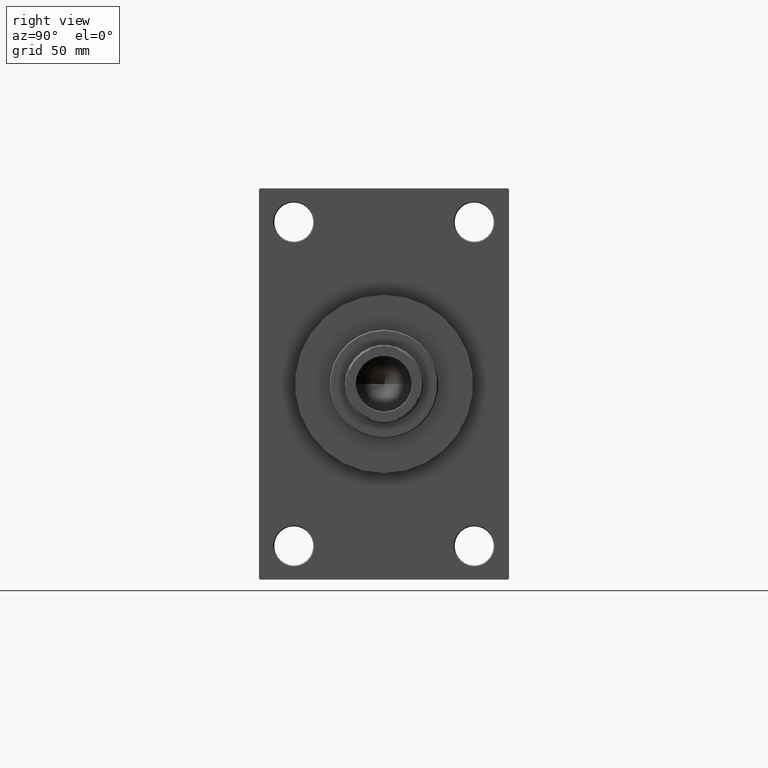
[diagram: clean part render]
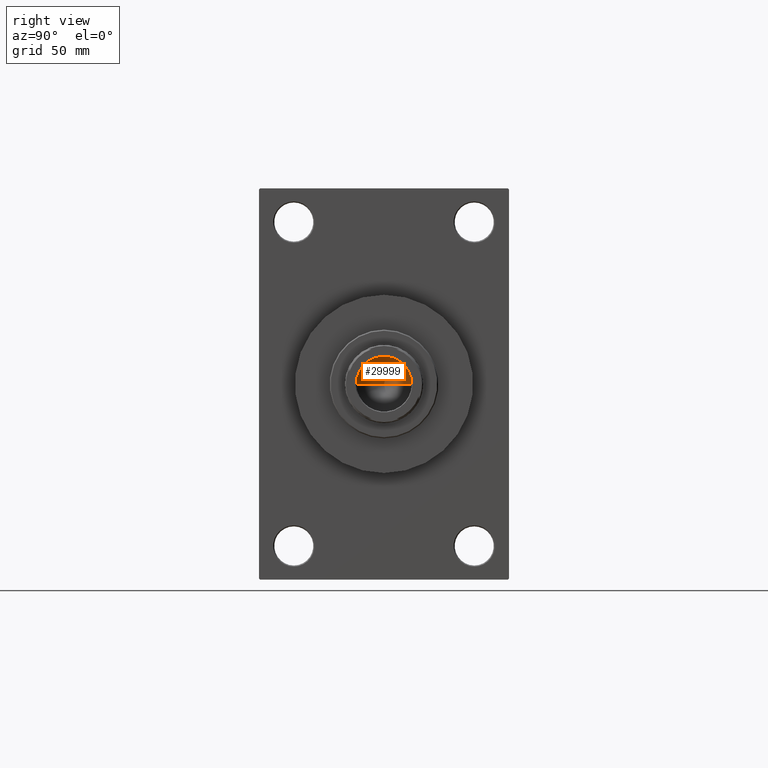
[diagram: same view with one face highlighted and labeled with its STEP entity id]
A machine part, right view. The second image highlights one B-rep face of the part: STEP entity #29999.
In plain terms, the highlighted conical surface has half-angle 59 deg.
Its self-contained STEP definition (entity closure, byte-faithful):
#3292 = FACE_OUTER_BOUND ( 'NONE', #29573, .T. ) ;
#3311 = DIRECTION ( 'NONE',  ( 0.8571673007021110013, 0.000000000000000000, 0.5150380749100563760 ) ) ;
#4835 = EDGE_CURVE ( 'NONE', #43753, #47663, #27485, .T. ) ;
#4854 = DIRECTION ( 'NONE',  ( -0.8571673007021110013, 1.049727191138617093E-16, 0.5150380749100563760 ) ) ;
#5794 = CIRCLE ( 'NONE', #43569, 12.74999999999998934 ) ;
#6670 = DIRECTION ( 'NONE',  ( -0.000000000000000000, -0.000000000000000000, 1.000000000000000000 ) ) ;
#8914 = CARTESIAN_POINT ( 'NONE',  ( 12.74999999999998934, 0.000000000000000000, 151.0000000000000284 ) ) ;
#10179 = ORIENTED_EDGE ( 'NONE', *, *, #4835, .T. ) ;
#11582 = DIRECTION ( 'NONE',  ( 1.000000000000000000, 0.000000000000000000, 0.000000000000000000 ) ) ;
#12788 = VECTOR ( 'NONE', #4854, 1000.000000000000000 ) ;
#13229 = ORIENTED_EDGE ( 'NONE', *, *, #36200, .T. ) ;
#13897 = CARTESIAN_POINT ( 'NONE',  ( 0.000000000000000000, 0.000000000000000000, 151.0000000000000284 ) ) ;
#15979 = ORIENTED_EDGE ( 'NONE', *, *, #46737, .F. ) ;
#17171 = CARTESIAN_POINT ( 'NONE',  ( -12.74999999999998934, 1.561424668912873928E-15, 151.0000000000000284 ) ) ;
#21609 = LINE ( 'NONE', #36336, #37197 ) ;
#25317 = DIRECTION ( 'NONE',  ( -0.000000000000000000, -0.000000000000000000, 1.000000000000000000 ) ) ;
#27250 = CARTESIAN_POINT ( 'NONE',  ( -12.74999999999998934, 1.561424668912873928E-15, 151.0000000000000284 ) ) ;
#27485 = LINE ( 'NONE', #27250, #12788 ) ;
#27941 = CONICAL_SURFACE ( 'NONE', #34123, 12.74999999999998934, 1.029744258676651869 ) ;
#28123 = CARTESIAN_POINT ( 'NONE',  ( -1.410643066818227497E-14, 0.000000000000000000, 143.3390271073986071 ) ) ;
#29573 = EDGE_LOOP ( 'NONE', ( #15979, #10179, #13229 ) ) ;
#29999 = ADVANCED_FACE ( 'NONE', ( #3292 ), #27941, .F. ) ;
#34123 = AXIS2_PLACEMENT_3D ( 'NONE', #13897, #6670, #36086 ) ;
#36086 = DIRECTION ( 'NONE',  ( 1.000000000000000000, 0.000000000000000000, 0.000000000000000000 ) ) ;
#36200 = EDGE_CURVE ( 'NONE', #47663, #45223, #5794, .T. ) ;
#36336 = CARTESIAN_POINT ( 'NONE',  ( 12.74999999999998934, 0.000000000000000000, 151.0000000000000284 ) ) ;
#37197 = VECTOR ( 'NONE', #3311, 1000.000000000000000 ) ;
#43569 = AXIS2_PLACEMENT_3D ( 'NONE', #44630, #25317, #11582 ) ;
#43753 = VERTEX_POINT ( 'NONE', #28123 ) ;
#44630 = CARTESIAN_POINT ( 'NONE',  ( 0.000000000000000000, 0.000000000000000000, 151.0000000000000284 ) ) ;
#45223 = VERTEX_POINT ( 'NONE', #8914 ) ;
#46737 = EDGE_CURVE ( 'NONE', #43753, #45223, #21609, .T. ) ;
#47663 = VERTEX_POINT ( 'NONE', #17171 ) ;